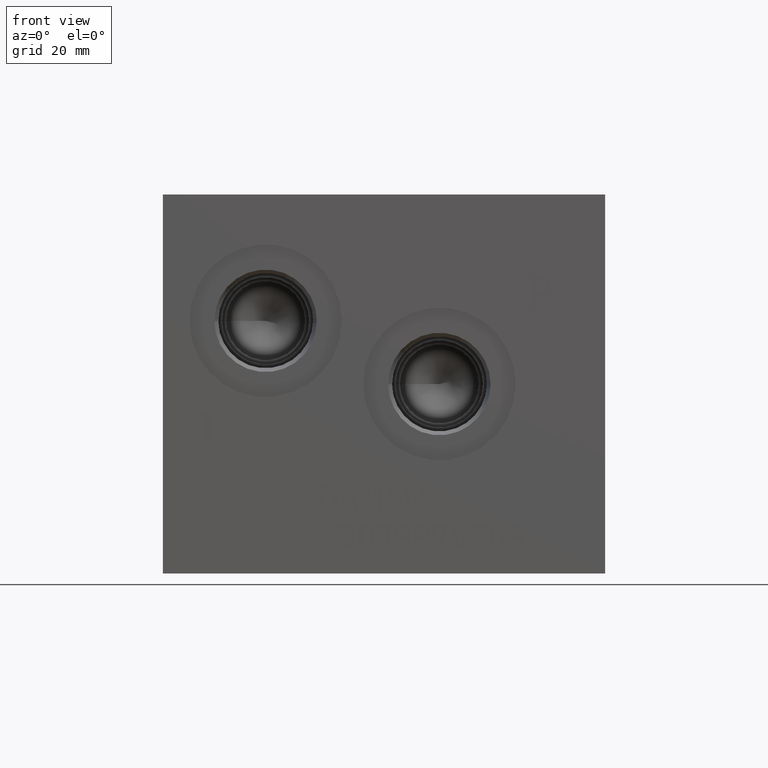
[diagram: clean part render]
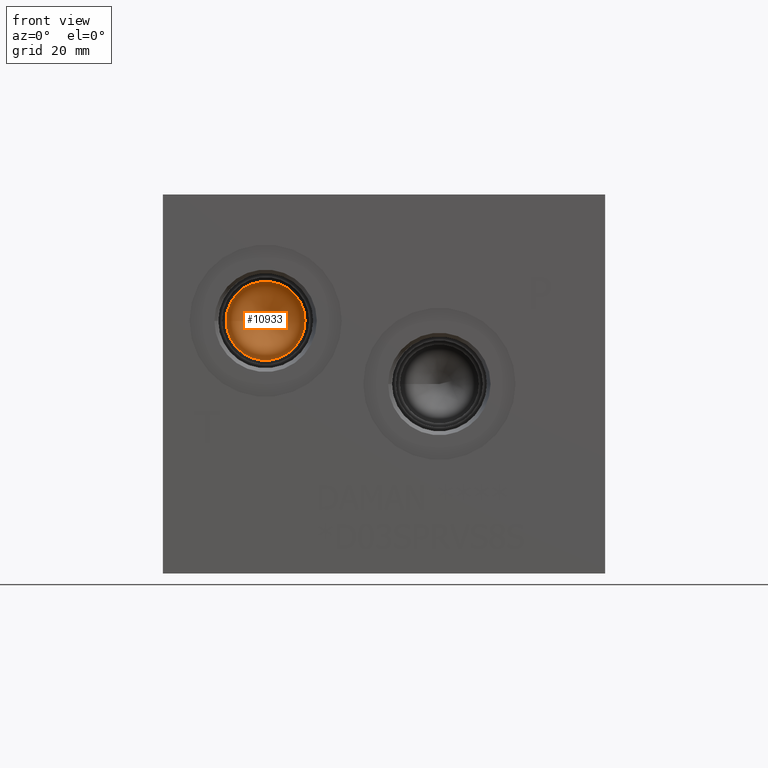
[diagram: same view with one face highlighted and labeled with its STEP entity id]
A machine part, front view. The second image highlights one B-rep face of the part: STEP entity #10933.
In plain terms, the highlighted conical surface has half-angle 60 deg.
Its self-contained STEP definition (entity closure, byte-faithful):
#37=CONICAL_SURFACE('',#11474,3.96875,1.0471975511966);
#226=CIRCLE('',#11475,7.9375);
#227=CIRCLE('',#11476,7.9375);
#1211=FACE_OUTER_BOUND('',#1835,.T.);
#1835=EDGE_LOOP('',(#9575,#9576,#9577,#9578));
#2871=LINE('',#18754,#3875);
#3875=VECTOR('',#13527,3.96875);
#5181=VERTEX_POINT('',#18750);
#5182=VERTEX_POINT('',#18751);
#5183=VERTEX_POINT('',#18753);
#6674=EDGE_CURVE('',#5181,#5182,#226,.T.);
#6675=EDGE_CURVE('',#5182,#5183,#2871,.T.);
#6676=EDGE_CURVE('',#5182,#5181,#227,.T.);
#9575=ORIENTED_EDGE('',*,*,#6674,.T.);
#9576=ORIENTED_EDGE('',*,*,#6675,.T.);
#9577=ORIENTED_EDGE('',*,*,#6675,.F.);
#9578=ORIENTED_EDGE('',*,*,#6676,.T.);
#10933=ADVANCED_FACE('',(#1211),#37,.F.);
#11474=AXIS2_PLACEMENT_3D('',#18749,#13523,#13524);
#11475=AXIS2_PLACEMENT_3D('',#18752,#13525,#13526);
#11476=AXIS2_PLACEMENT_3D('',#18755,#13528,#13529);
#13523=DIRECTION('center_axis',(0.,-1.,0.));
#13524=DIRECTION('ref_axis',(1.,0.,0.));
#13525=DIRECTION('center_axis',(0.,-1.,0.));
#13526=DIRECTION('ref_axis',(1.,0.,0.));
#13527=DIRECTION('',(0.866025403784439,0.5,1.06057523872491E-16));
#13528=DIRECTION('center_axis',(0.,-1.,0.));
#13529=DIRECTION('ref_axis',(1.,0.,0.));
#18749=CARTESIAN_POINT('Origin',(20.6502,25.5239588808463,50.8));
#18750=CARTESIAN_POINT('',(28.5877,23.2326,50.8));
#18751=CARTESIAN_POINT('',(12.7127,23.2326,50.8));
#18752=CARTESIAN_POINT('Origin',(20.6502,23.2326,50.8));
#18753=CARTESIAN_POINT('',(20.6502,27.8153177616927,50.8));
#18754=CARTESIAN_POINT('',(16.68145,25.5239588808463,50.8));
#18755=CARTESIAN_POINT('Origin',(20.6502,23.2326,50.8));